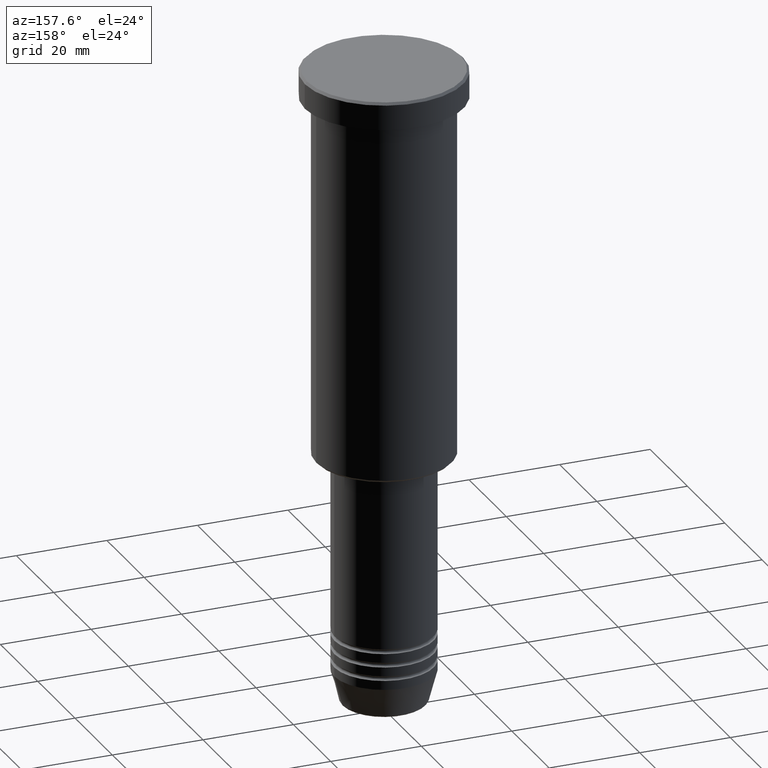
[diagram: clean part render]
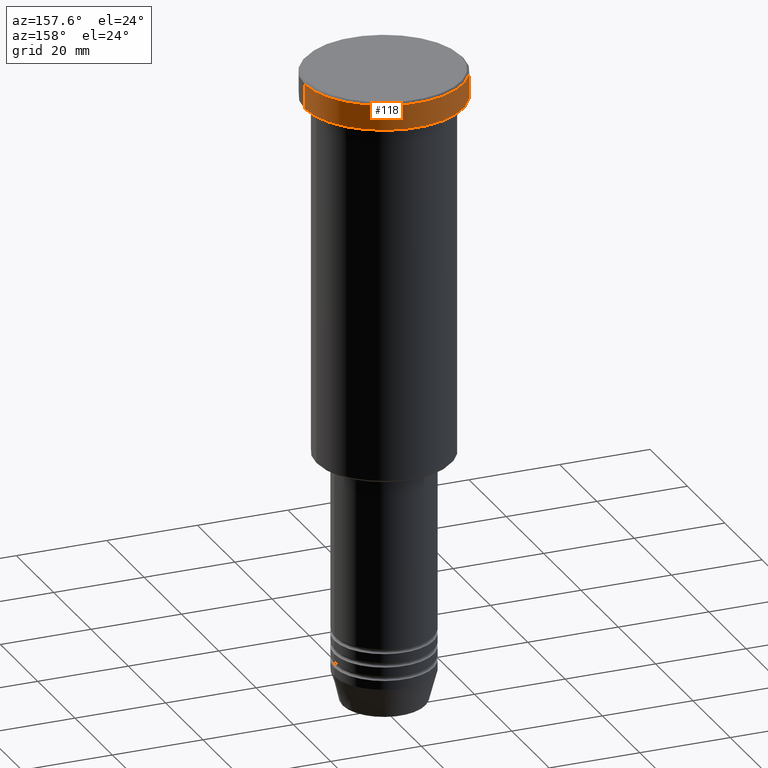
[diagram: same view with one face highlighted and labeled with its STEP entity id]
A machine part, auxiliary view. The second image highlights one B-rep face of the part: STEP entity #118.
In plain terms, the highlighted cylindrical surface (partial cylindrical patch) has radius 17.5 mm, axis along (-0, -0, 1).
Its self-contained STEP definition (entity closure, byte-faithful):
#4 = AXIS2_PLACEMENT_3D ( 'NONE', #644, #96, #732 ) ;
#96 = DIRECTION ( 'NONE',  ( -0.000000000000000000, -0.000000000000000000, 1.000000000000000000 ) ) ;
#109 = ORIENTED_EDGE ( 'NONE', *, *, #230, .T. ) ;
#111 = CARTESIAN_POINT ( 'NONE',  ( 17.50000000000000000, 0.000000000000000000, -0.5000000000000143219 ) ) ;
#113 = DIRECTION ( 'NONE',  ( 0.000000000000000000, 0.000000000000000000, -1.000000000000000000 ) ) ;
#118 = ADVANCED_FACE ( 'NONE', ( #1004 ), #192, .T. ) ;
#119 = CARTESIAN_POINT ( 'NONE',  ( 0.000000000000000000, 0.000000000000000000, -0.5000000000000143219 ) ) ;
#142 = CIRCLE ( 'NONE', #176, 17.50000000000000000 ) ;
#171 = VERTEX_POINT ( 'NONE', #285 ) ;
#176 = AXIS2_PLACEMENT_3D ( 'NONE', #119, #113, #380 ) ;
#192 = CYLINDRICAL_SURFACE ( 'NONE', #4, 17.50000000000000000 ) ;
#230 = EDGE_CURVE ( 'NONE', #1101, #919, #1178, .T. ) ;
#243 = VERTEX_POINT ( 'NONE', #111 ) ;
#285 = CARTESIAN_POINT ( 'NONE',  ( 17.50000000000000000, 0.000000000000000000, -5.999999999999995559 ) ) ;
#289 = EDGE_CURVE ( 'NONE', #171, #1101, #737, .T. ) ;
#297 = DIRECTION ( 'NONE',  ( -0.000000000000000000, -0.000000000000000000, 1.000000000000000000 ) ) ;
#367 = DIRECTION ( 'NONE',  ( -0.000000000000000000, -0.000000000000000000, 1.000000000000000000 ) ) ;
#380 = DIRECTION ( 'NONE',  ( 1.000000000000000000, 0.000000000000000000, 0.000000000000000000 ) ) ;
#437 = VECTOR ( 'NONE', #367, 1000.000000000000000 ) ;
#536 = CARTESIAN_POINT ( 'NONE',  ( -17.50000000000000000, 2.143131898507868248E-15, 0.000000000000000000 ) ) ;
#566 = VECTOR ( 'NONE', #297, 1000.000000000000000 ) ;
#634 = CARTESIAN_POINT ( 'NONE',  ( -17.50000000000000000, 2.143131898507868248E-15, -5.999999999999995559 ) ) ;
#642 = ORIENTED_EDGE ( 'NONE', *, *, #1131, .F. ) ;
#644 = CARTESIAN_POINT ( 'NONE',  ( 0.000000000000000000, 0.000000000000000000, 0.000000000000000000 ) ) ;
#656 = EDGE_LOOP ( 'NONE', ( #1139, #109, #981, #642 ) ) ;
#709 = LINE ( 'NONE', #1082, #566 ) ;
#732 = DIRECTION ( 'NONE',  ( 1.000000000000000000, 0.000000000000000000, 0.000000000000000000 ) ) ;
#737 = CIRCLE ( 'NONE', #893, 17.50000000000000000 ) ;
#742 = DIRECTION ( 'NONE',  ( -0.000000000000000000, -0.000000000000000000, 1.000000000000000000 ) ) ;
#849 = CARTESIAN_POINT ( 'NONE',  ( 0.000000000000000000, 0.000000000000000000, -5.999999999999995559 ) ) ;
#893 = AXIS2_PLACEMENT_3D ( 'NONE', #849, #742, #946 ) ;
#919 = VERTEX_POINT ( 'NONE', #966 ) ;
#946 = DIRECTION ( 'NONE',  ( 1.000000000000000000, 0.000000000000000000, 0.000000000000000000 ) ) ;
#966 = CARTESIAN_POINT ( 'NONE',  ( -17.50000000000000000, 2.143131898507868248E-15, -0.5000000000000143219 ) ) ;
#981 = ORIENTED_EDGE ( 'NONE', *, *, #1153, .T. ) ;
#1004 = FACE_OUTER_BOUND ( 'NONE', #656, .T. ) ;
#1082 = CARTESIAN_POINT ( 'NONE',  ( 17.50000000000000000, 0.000000000000000000, 0.000000000000000000 ) ) ;
#1101 = VERTEX_POINT ( 'NONE', #634 ) ;
#1131 = EDGE_CURVE ( 'NONE', #171, #243, #709, .T. ) ;
#1139 = ORIENTED_EDGE ( 'NONE', *, *, #289, .T. ) ;
#1153 = EDGE_CURVE ( 'NONE', #919, #243, #142, .T. ) ;
#1178 = LINE ( 'NONE', #536, #437 ) ;